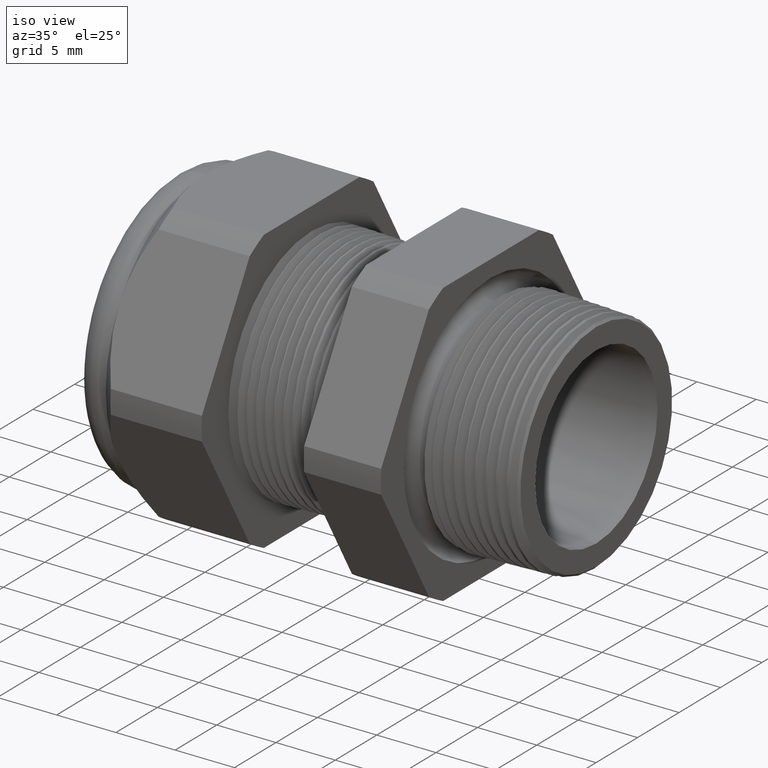
[diagram: clean part render]
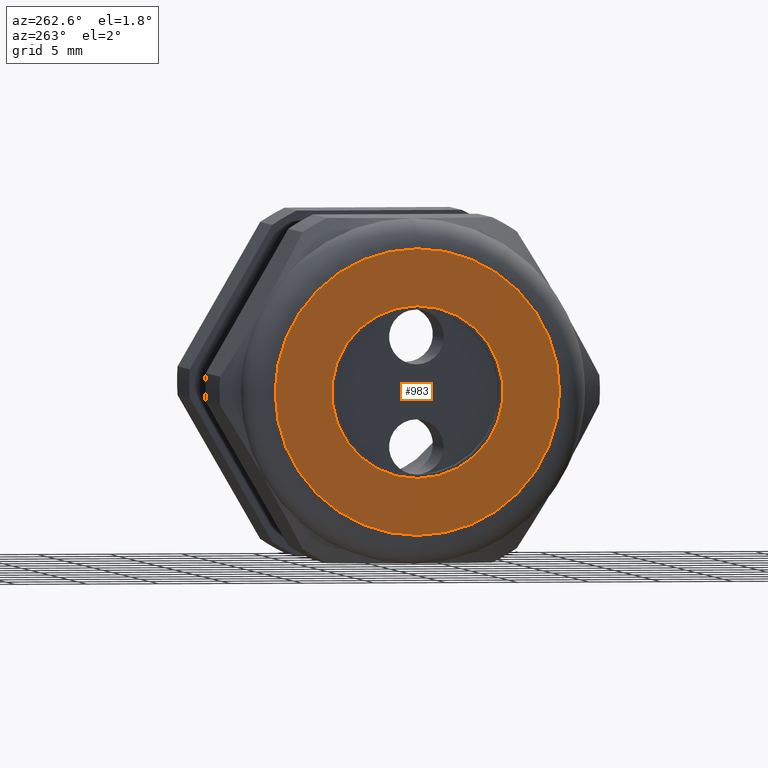
[diagram: tour spotlight — one face highlighted and labeled with its STEP entity id]
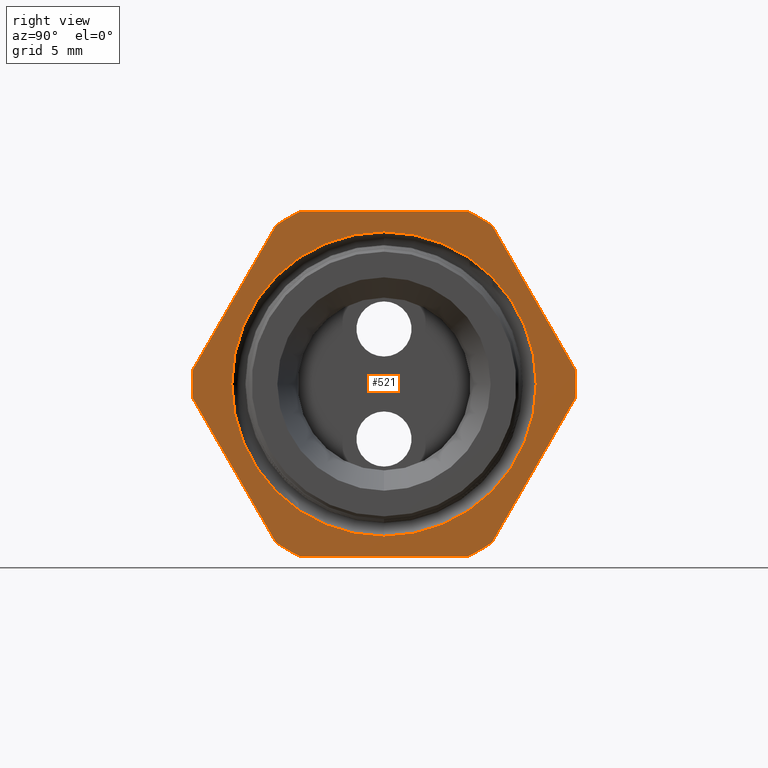
[diagram: tour spotlight — one face highlighted and labeled with its STEP entity id]
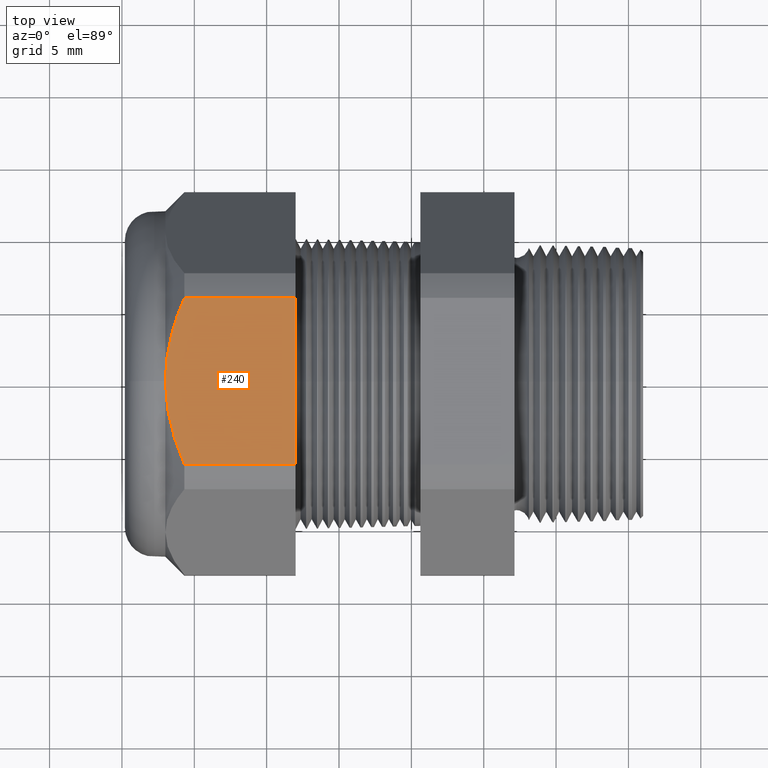
[diagram: tour spotlight — one face highlighted and labeled with its STEP entity id]
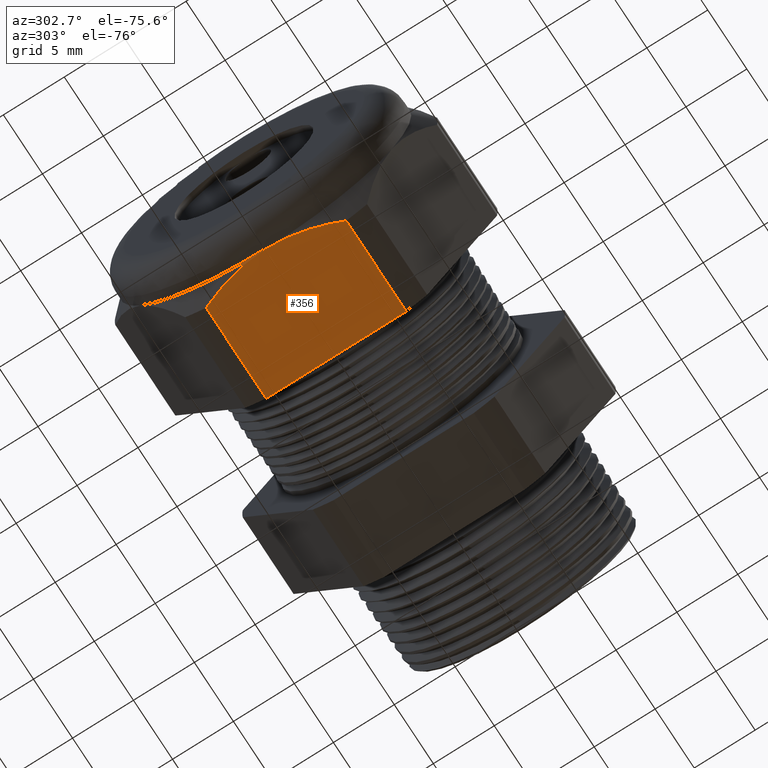
[diagram: tour spotlight — one face highlighted and labeled with its STEP entity id]
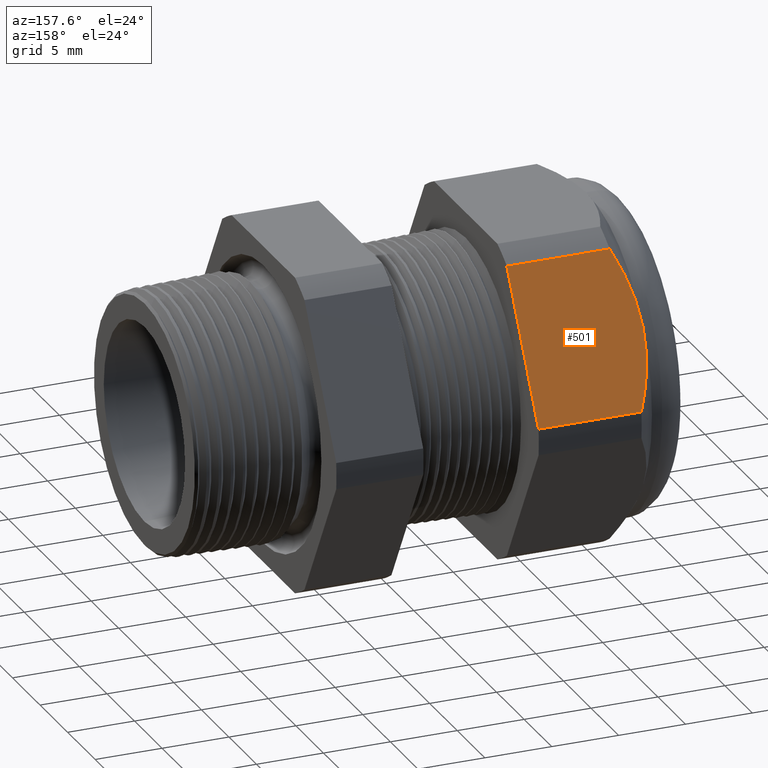
[diagram: tour spotlight — one face highlighted and labeled with its STEP entity id]
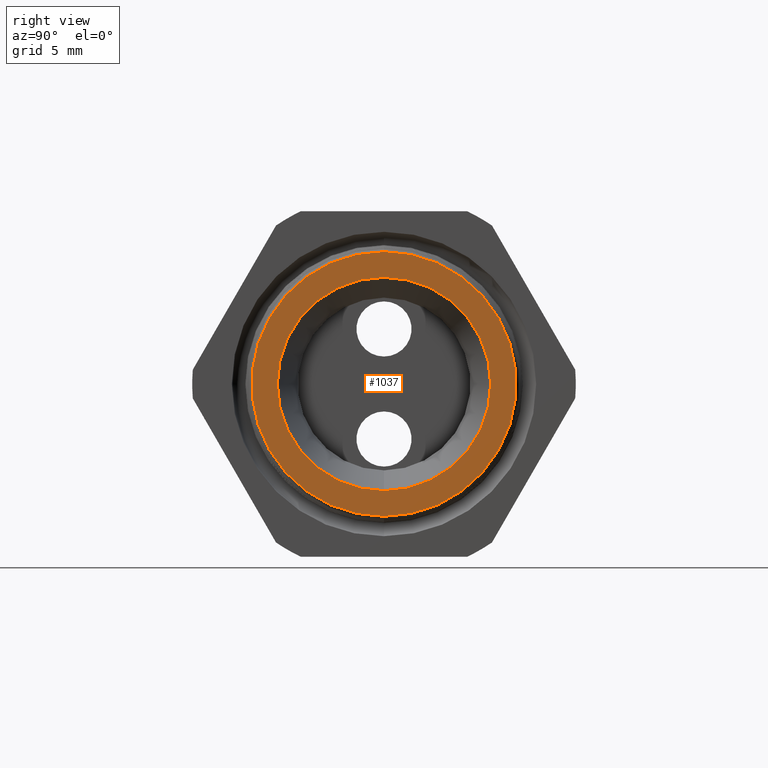
[diagram: tour spotlight — one face highlighted and labeled with its STEP entity id]
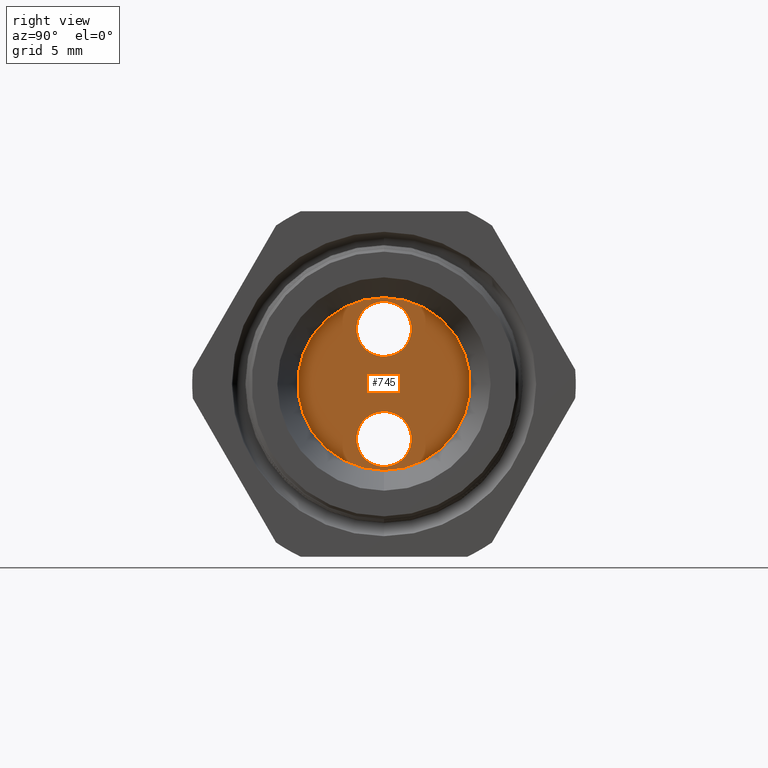
[diagram: tour spotlight — one face highlighted and labeled with its STEP entity id]
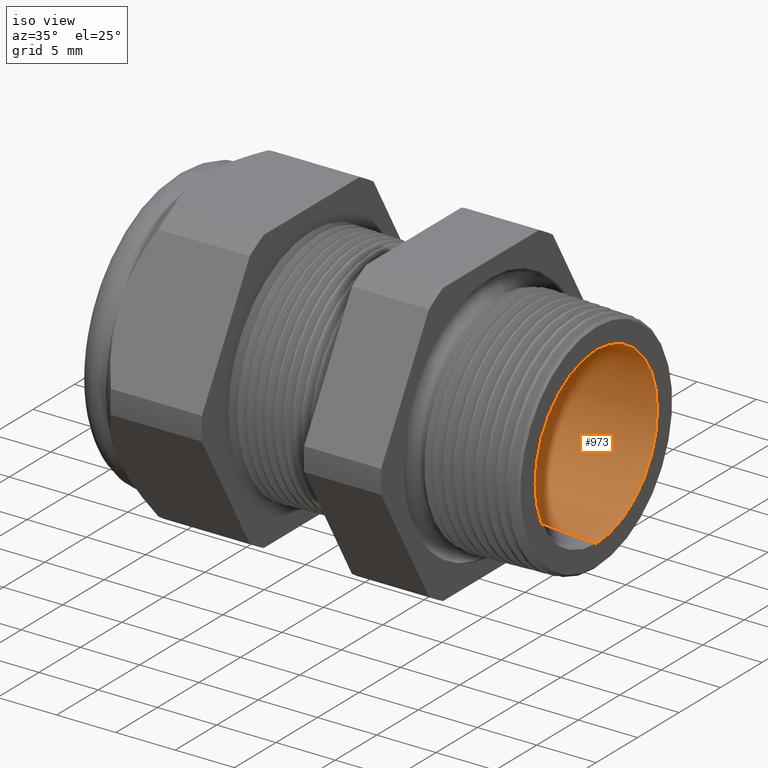
[diagram: tour spotlight — one face highlighted and labeled with its STEP entity id]
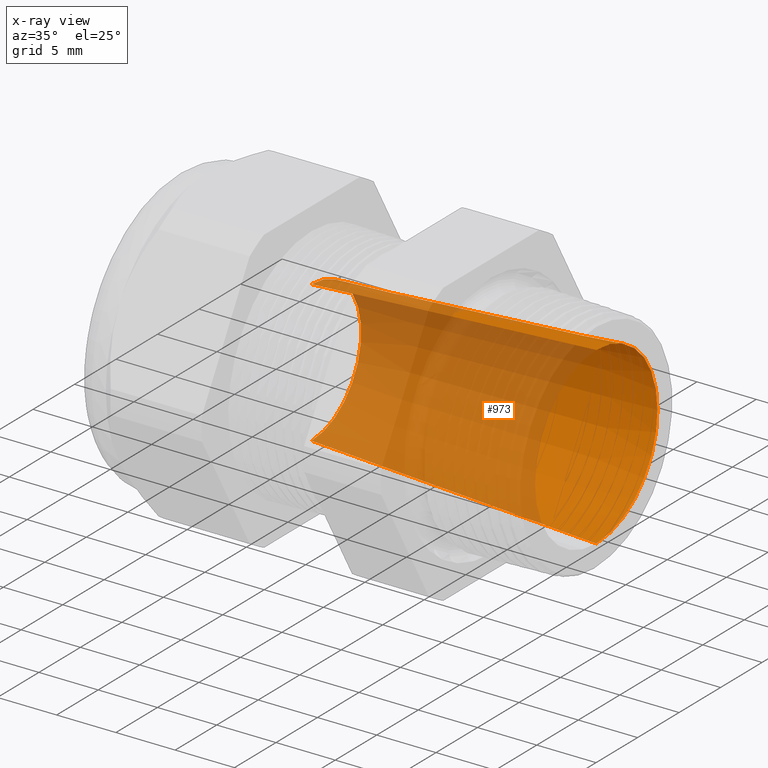
[diagram: x-ray of the same camera — body ghosted, this tour face saturated]
A machine part: a face-by-face anatomy tour. The part has 178 B-rep faces; the first image is the clean iso view, then the 8 largest visible faces are spotlighted one at a time (largest first), each with its STEP entity span.

Face 1 — auxiliary view, entity #983. In plain terms, the highlighted planar face has unit normal (-1, 0, 0).
Definition (entity closure, byte-faithful):
#409 = EDGE_CURVE ( 'NONE', #410, #573, #2291, .T. ) ;
#410 = VERTEX_POINT ( 'NONE', #2286 ) ;
#428 = EDGE_CURVE ( 'NONE', #429, #434, #2320, .T. ) ;
#429 = VERTEX_POINT ( 'NONE', #2315 ) ;
#434 = VERTEX_POINT ( 'NONE', #2366 ) ;
#573 = VERTEX_POINT ( 'NONE', #2643 ) ;
#983 = ADVANCED_FACE ( 'NONE', ( #3403, #3402 ), #3401, .T. ) ;
#984 = EDGE_LOOP ( 'NONE', ( #985, #986 ) ) ;
#985 = ORIENTED_EDGE ( 'NONE', *, *, #409, .T. ) ;
#986 = ORIENTED_EDGE ( 'NONE', *, *, #987, .T. ) ;
#987 = EDGE_CURVE ( 'NONE', #573, #410, #3396, .T. ) ;
#988 = EDGE_LOOP ( 'NONE', ( #989, #991 ) ) ;
#989 = ORIENTED_EDGE ( 'NONE', *, *, #990, .T. ) ;
#990 = EDGE_CURVE ( 'NONE', #434, #429, #3391, .T. ) ;
#991 = ORIENTED_EDGE ( 'NONE', *, *, #428, .T. ) ;
#2286 = CARTESIAN_POINT ( 'NONE',  ( -1.370000000000000100, 0.0000000000000000000, 0.3899999999999999600 ) ) ;
#2287 = DIRECTION ( 'NONE',  ( 0.0000000000000000000, 0.0000000000000000000, 1.000000000000000000 ) ) ;
#2288 = DIRECTION ( 'NONE',  ( -1.000000000000000000, 0.0000000000000000000, 0.0000000000000000000 ) ) ;
#2289 = CARTESIAN_POINT ( 'NONE',  ( -1.370000000000000100, 0.0000000000000000000, 0.0000000000000000000 ) ) ;
#2290 = AXIS2_PLACEMENT_3D ( 'NONE', #2289, #2288, #2287 ) ;
#2291 = CIRCLE ( 'NONE', #2290, 0.3899999999999999600 ) ;
#2315 = CARTESIAN_POINT ( 'NONE',  ( -1.370000000000000100, 2.877919977996279800E-017, 0.2349999999999999900 ) ) ;
#2316 = DIRECTION ( 'NONE',  ( 0.0000000000000000000, 0.0000000000000000000, -1.000000000000000000 ) ) ;
#2317 = DIRECTION ( 'NONE',  ( 1.000000000000000000, 0.0000000000000000000, 0.0000000000000000000 ) ) ;
#2318 = CARTESIAN_POINT ( 'NONE',  ( -1.370000000000000100, 0.0000000000000000000, 0.0000000000000000000 ) ) ;
#2319 = AXIS2_PLACEMENT_3D ( 'NONE', #2318, #2317, #2316 ) ;
#2320 = CIRCLE ( 'NONE', #2319, 0.2349999999999999900 ) ;
#2366 = CARTESIAN_POINT ( 'NONE',  ( -1.370000000000000100, 0.0000000000000000000, -0.2349999999999999900 ) ) ;
#2643 = CARTESIAN_POINT ( 'NONE',  ( -1.370000000000000100, 5.265981236333617600E-017, -0.3899999999999999600 ) ) ;
#3387 = DIRECTION ( 'NONE',  ( 0.0000000000000000000, 0.0000000000000000000, -1.000000000000000000 ) ) ;
#3388 = DIRECTION ( 'NONE',  ( 1.000000000000000000, 0.0000000000000000000, 0.0000000000000000000 ) ) ;
#3389 = CARTESIAN_POINT ( 'NONE',  ( -1.370000000000000100, 0.0000000000000000000, 0.0000000000000000000 ) ) ;
#3390 = AXIS2_PLACEMENT_3D ( 'NONE', #3389, #3388, #3387 ) ;
#3391 = CIRCLE ( 'NONE', #3390, 0.2349999999999999900 ) ;
#3392 = DIRECTION ( 'NONE',  ( 0.0000000000000000000, 0.0000000000000000000, 1.000000000000000000 ) ) ;
#3393 = DIRECTION ( 'NONE',  ( -1.000000000000000000, 0.0000000000000000000, 0.0000000000000000000 ) ) ;
#3394 = CARTESIAN_POINT ( 'NONE',  ( -1.370000000000000100, 0.0000000000000000000, 0.0000000000000000000 ) ) ;
#3395 = AXIS2_PLACEMENT_3D ( 'NONE', #3394, #3393, #3392 ) ;
#3396 = CIRCLE ( 'NONE', #3395, 0.3899999999999999600 ) ;
#3397 = DIRECTION ( 'NONE',  ( 0.0000000000000000000, 0.0000000000000000000, 1.000000000000000000 ) ) ;
#3398 = DIRECTION ( 'NONE',  ( -1.000000000000000000, 0.0000000000000000000, 0.0000000000000000000 ) ) ;
#3399 = CARTESIAN_POINT ( 'NONE',  ( -1.370000000000000100, 0.4699999999999999200, 0.0000000000000000000 ) ) ;
#3400 = AXIS2_PLACEMENT_3D ( 'NONE', #3399, #3398, #3397 ) ;
#3401 = PLANE ( 'NONE',  #3400 ) ;
#3402 = FACE_BOUND ( 'NONE', #988, .T. ) ;
#3403 = FACE_OUTER_BOUND ( 'NONE', #984, .T. ) ;

Face 2 — right view, entity #521. In plain terms, the highlighted planar face has unit normal (1, 0, 0).
Definition (entity closure, byte-faithful):
#6 = EDGE_CURVE ( 'NONE', #7, #4582, #1525, .T. ) ;
#7 = VERTEX_POINT ( 'NONE', #1520 ) ;
#8 = ORIENTED_EDGE ( 'NONE', *, *, #6, .T. ) ;
#10 = EDGE_CURVE ( 'NONE', #4850, #7, #1519, .T. ) ;
#14 = EDGE_CURVE ( 'NONE', #4852, #4850, #1510, .T. ) ;
#37 = EDGE_CURVE ( 'NONE', #4722, #4852, #1586, .T. ) ;
#152 = VERTEX_POINT ( 'NONE', #1800 ) ;
#516 = EDGE_CURVE ( 'NONE', #740, #152, #2498, .T. ) ;
#517 = ORIENTED_EDGE ( 'NONE', *, *, #516, .F. ) ;
#518 = EDGE_LOOP ( 'NONE', ( #517, #4675 ) ) ;
#521 = ADVANCED_FACE ( 'NONE', ( #2493, #2492 ), #2491, .T. ) ;
#538 = VERTEX_POINT ( 'NONE', #2584 ) ;
#540 = EDGE_CURVE ( 'NONE', #542, #538, #2583, .T. ) ;
#542 = VERTEX_POINT ( 'NONE', #2578 ) ;
#543 = ORIENTED_EDGE ( 'NONE', *, *, #540, .T. ) ;
#740 = VERTEX_POINT ( 'NONE', #2918 ) ;
#743 = EDGE_CURVE ( 'NONE', #152, #740, #2917, .T. ) ;
#1506 = DIRECTION ( 'NONE',  ( 0.0000000000000000000, 0.0000000000000000000, -1.000000000000000000 ) ) ;
#1507 = DIRECTION ( 'NONE',  ( 1.000000000000000000, 0.0000000000000000000, 0.0000000000000000000 ) ) ;
#1508 = CARTESIAN_POINT ( 'NONE',  ( -0.3100000000000000000, 0.0000000000000000000, 0.0000000000000000000 ) ) ;
#1509 = AXIS2_PLACEMENT_3D ( 'NONE', #1508, #1507, #1506 ) ;
#1510 = CIRCLE ( 'NONE', #1509, 0.5217000000000000500 ) ;
#1516 = DIRECTION ( 'NONE',  ( 0.0000000000000000000, 1.000000000000000000, 0.0000000000000000000 ) ) ;
#1517 = VECTOR ( 'NONE', #1516, 39.37007874015748100 ) ;
#1518 = CARTESIAN_POINT ( 'NONE',  ( -0.3100000000000000000, 0.9399999999999999500, -0.4700000000000000300 ) ) ;
#1519 = LINE ( 'NONE', #1518, #1517 ) ;
#1520 = CARTESIAN_POINT ( 'NONE',  ( -0.3100000000000000000, 0.2264307620443831200, -0.4700000000000000300 ) ) ;
#1521 = DIRECTION ( 'NONE',  ( 0.0000000000000000000, 0.0000000000000000000, -1.000000000000000000 ) ) ;
#1522 = DIRECTION ( 'NONE',  ( 1.000000000000000000, 0.0000000000000000000, 0.0000000000000000000 ) ) ;
#1523 = CARTESIAN_POINT ( 'NONE',  ( -0.3100000000000000000, 0.0000000000000000000, 0.0000000000000000000 ) ) ;
#1524 = AXIS2_PLACEMENT_3D ( 'NONE', #1523, #1522, #1521 ) ;
#1525 = CIRCLE ( 'NONE', #1524, 0.5217000000000000500 ) ;
#1583 = DIRECTION ( 'NONE',  ( 0.0000000000000000000, 0.5000000000000001100, -0.8660254037844384900 ) ) ;
#1584 = VECTOR ( 'NONE', #1583, 39.37007874015748900 ) ;
#1585 = CARTESIAN_POINT ( 'NONE',  ( -0.3100000000000000000, -0.1720319397786861700, -0.6420319397786864400 ) ) ;
#1586 = LINE ( 'NONE', #1585, #1584 ) ;
#1800 = CARTESIAN_POINT ( 'NONE',  ( -0.3100000000000000000, 5.070638467826607500E-017, 0.4140490524579807900 ) ) ;
#2491 = PLANE ( 'NONE',  #2555 ) ;
#2492 = FACE_OUTER_BOUND ( 'NONE', #4566, .T. ) ;
#2493 = FACE_BOUND ( 'NONE', #518, .T. ) ;
#2494 = DIRECTION ( 'NONE',  ( 0.0000000000000000000, 0.0000000000000000000, -1.000000000000000000 ) ) ;
#2495 = DIRECTION ( 'NONE',  ( 1.000000000000000000, 0.0000000000000000000, 0.0000000000000000000 ) ) ;
#2496 = CARTESIAN_POINT ( 'NONE',  ( -0.3100000000000000000, 0.0000000000000000000, 0.0000000000000000000 ) ) ;
#2497 = AXIS2_PLACEMENT_3D ( 'NONE', #2496, #2495, #2494 ) ;
#2498 = CIRCLE ( 'NONE', #2497, 0.4140490524579808500 ) ;
#2552 = DIRECTION ( 'NONE',  ( 0.0000000000000000000, 0.0000000000000000000, -1.000000000000000000 ) ) ;
#2553 = DIRECTION ( 'NONE',  ( 1.000000000000000000, 0.0000000000000000000, 0.0000000000000000000 ) ) ;
#2554 = CARTESIAN_POINT ( 'NONE',  ( -0.3100000000000000000, 0.9399999999999999500, 0.0000000000000000000 ) ) ;
#2555 = AXIS2_PLACEMENT_3D ( 'NONE', #2554, #2553, #2552 ) ;
#2578 = CARTESIAN_POINT ( 'NONE',  ( -0.3100000000000000000, 0.2938165587564947600, 0.4310947921287048800 ) ) ;
#2579 = DIRECTION ( 'NONE',  ( 0.0000000000000000000, 0.0000000000000000000, -1.000000000000000000 ) ) ;
#2580 = DIRECTION ( 'NONE',  ( 1.000000000000000000, 0.0000000000000000000, 0.0000000000000000000 ) ) ;
#2581 = CARTESIAN_POINT ( 'NONE',  ( -0.3100000000000000000, 0.0000000000000000000, 0.0000000000000000000 ) ) ;
#2582 = AXIS2_PLACEMENT_3D ( 'NONE', #2581, #2580, #2579 ) ;
#2583 = CIRCLE ( 'NONE', #2582, 0.5217000000000000500 ) ;
#2584 = CARTESIAN_POINT ( 'NONE',  ( -0.3100000000000000000, 0.2264307620443832800, 0.4699999999999999200 ) ) ;
#2913 = DIRECTION ( 'NONE',  ( 0.0000000000000000000, 0.0000000000000000000, -1.000000000000000000 ) ) ;
#2914 = DIRECTION ( 'NONE',  ( 1.000000000000000000, 0.0000000000000000000, 0.0000000000000000000 ) ) ;
#2915 = CARTESIAN_POINT ( 'NONE',  ( -0.3100000000000000000, 0.0000000000000000000, 0.0000000000000000000 ) ) ;
#2916 = AXIS2_PLACEMENT_3D ( 'NONE', #2915, #2914, #2913 ) ;
#2917 = CIRCLE ( 'NONE', #2916, 0.4140490524579808500 ) ;
#2918 = CARTESIAN_POINT ( 'NONE',  ( -0.3100000000000000000, 0.0000000000000000000, -0.4140490524579807900 ) ) ;
#4168 = CARTESIAN_POINT ( 'NONE',  ( -0.3100000000000000000, 0.2938165587564948700, -0.4310947921287048800 ) ) ;
#4174 = CARTESIAN_POINT ( 'NONE',  ( -0.3100000000000000000, 0.5202473208008777700, -0.03890520787129494300 ) ) ;
#4187 = CARTESIAN_POINT ( 'NONE',  ( -0.3100000000000000000, 0.6420319397786862200, -0.1720319397786861700 ) ) ;
#4188 = LINE ( 'NONE', #4187, #4249 ) ;
#4219 = AXIS2_PLACEMENT_3D ( 'NONE', #4283, #4282, #4281 ) ;
#4220 = CIRCLE ( 'NONE', #4219, 0.5217000000000000500 ) ;
#4247 = CARTESIAN_POINT ( 'NONE',  ( -0.3100000000000000000, 0.5202473208008776600, 0.03890520787129531800 ) ) ;
#4248 = DIRECTION ( 'NONE',  ( 0.0000000000000000000, -0.5000000000000001100, 0.8660254037844384900 ) ) ;
#4249 = VECTOR ( 'NONE', #4248, 39.37007874015748900 ) ;
#4253 = CARTESIAN_POINT ( 'NONE',  ( -0.3100000000000000000, -0.5202473208008777700, -0.03890520787129495000 ) ) ;
#4277 = DIRECTION ( 'NONE',  ( 0.0000000000000000000, 0.4999999999999998300, 0.8660254037844388200 ) ) ;
#4278 = VECTOR ( 'NONE', #4277, 39.37007874015748100 ) ;
#4279 = CARTESIAN_POINT ( 'NONE',  ( -0.3100000000000000000, 0.6420319397786861100, 0.1720319397786860800 ) ) ;
#4280 = LINE ( 'NONE', #4279, #4278 ) ;
#4281 = DIRECTION ( 'NONE',  ( 0.0000000000000000000, 0.0000000000000000000, -1.000000000000000000 ) ) ;
#4282 = DIRECTION ( 'NONE',  ( 1.000000000000000000, 0.0000000000000000000, 0.0000000000000000000 ) ) ;
#4283 = CARTESIAN_POINT ( 'NONE',  ( -0.3100000000000000000, 0.0000000000000000000, 0.0000000000000000000 ) ) ;
#4351 = DIRECTION ( 'NONE',  ( 0.0000000000000000000, 0.0000000000000000000, -1.000000000000000000 ) ) ;
#4352 = DIRECTION ( 'NONE',  ( 1.000000000000000000, 0.0000000000000000000, 0.0000000000000000000 ) ) ;
#4353 = CARTESIAN_POINT ( 'NONE',  ( -0.3100000000000000000, 0.0000000000000000000, 0.0000000000000000000 ) ) ;
#4354 = AXIS2_PLACEMENT_3D ( 'NONE', #4353, #4352, #4351 ) ;
#4355 = CIRCLE ( 'NONE', #4354, 0.5217000000000000500 ) ;
#4356 = CARTESIAN_POINT ( 'NONE',  ( -0.3100000000000000000, -0.5202473208008777700, 0.03890520787129464500 ) ) ;
#4410 = DIRECTION ( 'NONE',  ( 0.0000000000000000000, -0.4999999999999998300, -0.8660254037844388200 ) ) ;
#4411 = VECTOR ( 'NONE', #4410, 39.37007874015748100 ) ;
#4412 = CARTESIAN_POINT ( 'NONE',  ( -0.3100000000000000000, -0.1720319397786864200, 0.6420319397786858900 ) ) ;
#4413 = LINE ( 'NONE', #4412, #4411 ) ;
#4426 = CARTESIAN_POINT ( 'NONE',  ( -0.3100000000000000000, -0.2938165587564945900, 0.4310947921287050500 ) ) ;
#4463 = CARTESIAN_POINT ( 'NONE',  ( -0.3100000000000000000, -0.2264307620443835300, 0.4699999999999997000 ) ) ;
#4532 = DIRECTION ( 'NONE',  ( 0.0000000000000000000, 0.0000000000000000000, -1.000000000000000000 ) ) ;
#4533 = DIRECTION ( 'NONE',  ( 1.000000000000000000, 0.0000000000000000000, 0.0000000000000000000 ) ) ;
#4534 = CARTESIAN_POINT ( 'NONE',  ( -0.3100000000000000000, 0.0000000000000000000, 0.0000000000000000000 ) ) ;
#4535 = AXIS2_PLACEMENT_3D ( 'NONE', #4534, #4533, #4532 ) ;
#4536 = CIRCLE ( 'NONE', #4535, 0.5217000000000000500 ) ;
#4561 = VERTEX_POINT ( 'NONE', #4174 ) ;
#4564 = CARTESIAN_POINT ( 'NONE',  ( -0.3100000000000000000, -0.2938165587564942600, -0.4310947921287053300 ) ) ;
#4565 = CARTESIAN_POINT ( 'NONE',  ( -0.3100000000000000000, -0.2264307620443830900, -0.4700000000000000300 ) ) ;
#4566 = EDGE_LOOP ( 'NONE', ( #4709, #4706, #4685, #543, #4847, #4799, #4795, #4764, #4723, #4851, #4849, #8 ) ) ;
#4573 = DIRECTION ( 'NONE',  ( 0.0000000000000000000, -1.000000000000000000, 0.0000000000000000000 ) ) ;
#4574 = VECTOR ( 'NONE', #4573, 39.37007874015748100 ) ;
#4575 = CARTESIAN_POINT ( 'NONE',  ( -0.3100000000000000000, 0.9399999999999999500, 0.4699999999999999200 ) ) ;
#4576 = LINE ( 'NONE', #4575, #4574 ) ;
#4582 = VERTEX_POINT ( 'NONE', #4168 ) ;
#4675 = ORIENTED_EDGE ( 'NONE', *, *, #743, .F. ) ;
#4685 = ORIENTED_EDGE ( 'NONE', *, *, #4690, .T. ) ;
#4690 = EDGE_CURVE ( 'NONE', #4691, #542, #4188, .T. ) ;
#4691 = VERTEX_POINT ( 'NONE', #4247 ) ;
#4706 = ORIENTED_EDGE ( 'NONE', *, *, #4707, .T. ) ;
#4707 = EDGE_CURVE ( 'NONE', #4561, #4691, #4220, .T. ) ;
#4708 = EDGE_CURVE ( 'NONE', #4582, #4561, #4280, .T. ) ;
#4709 = ORIENTED_EDGE ( 'NONE', *, *, #4708, .T. ) ;
#4722 = VERTEX_POINT ( 'NONE', #4253 ) ;
#4723 = ORIENTED_EDGE ( 'NONE', *, *, #37, .T. ) ;
#4763 = VERTEX_POINT ( 'NONE', #4356 ) ;
#4764 = ORIENTED_EDGE ( 'NONE', *, *, #4765, .T. ) ;
#4765 = EDGE_CURVE ( 'NONE', #4763, #4722, #4355, .T. ) ;
#4770 = EDGE_CURVE ( 'NONE', #4794, #4763, #4413, .T. ) ;
#4794 = VERTEX_POINT ( 'NONE', #4426 ) ;
#4795 = ORIENTED_EDGE ( 'NONE', *, *, #4770, .T. ) ;
#4799 = ORIENTED_EDGE ( 'NONE', *, *, #4838, .T. ) ;
#4812 = VERTEX_POINT ( 'NONE', #4463 ) ;
#4838 = EDGE_CURVE ( 'NONE', #4812, #4794, #4536, .T. ) ;
#4845 = EDGE_CURVE ( 'NONE', #538, #4812, #4576, .T. ) ;
#4847 = ORIENTED_EDGE ( 'NONE', *, *, #4845, .T. ) ;
#4849 = ORIENTED_EDGE ( 'NONE', *, *, #10, .T. ) ;
#4850 = VERTEX_POINT ( 'NONE', #4565 ) ;
#4851 = ORIENTED_EDGE ( 'NONE', *, *, #14, .T. ) ;
#4852 = VERTEX_POINT ( 'NONE', #4564 ) ;

Face 3 — top view, entity #240. In plain terms, the highlighted planar face has unit normal (0, 0, 1).
Definition (entity closure, byte-faithful):
#180 = VERTEX_POINT ( 'NONE', #1815 ) ;
#188 = VERTEX_POINT ( 'NONE', #1868 ) ;
#189 = EDGE_CURVE ( 'NONE', #188, #180, #1867, .T. ) ;
#231 = VERTEX_POINT ( 'NONE', #1913 ) ;
#232 = VERTEX_POINT ( 'NONE', #1910 ) ;
#233 = EDGE_CURVE ( 'NONE', #232, #454, #1960, .T. ) ;
#234 = ORIENTED_EDGE ( 'NONE', *, *, #233, .T. ) ;
#235 = EDGE_CURVE ( 'NONE', #231, #232, #1959, .T. ) ;
#236 = ORIENTED_EDGE ( 'NONE', *, *, #235, .T. ) ;
#238 = EDGE_LOOP ( 'NONE', ( #236, #234, #495, #487, #488 ) ) ;
#240 = ADVANCED_FACE ( 'NONE', ( #1937 ), #1936, .T. ) ;
#454 = VERTEX_POINT ( 'NONE', #2392 ) ;
#487 = ORIENTED_EDGE ( 'NONE', *, *, #189, .F. ) ;
#488 = ORIENTED_EDGE ( 'NONE', *, *, #489, .F. ) ;
#489 = EDGE_CURVE ( 'NONE', #231, #188, #2456, .T. ) ;
#495 = ORIENTED_EDGE ( 'NONE', *, *, #496, .T. ) ;
#496 = EDGE_CURVE ( 'NONE', #454, #180, #2487, .T. ) ;
#1815 = CARTESIAN_POINT ( 'NONE',  ( -1.208063779527559100, -0.2264307620443834500, 0.4699999999999999200 ) ) ;
#1864 = DIRECTION ( 'NONE',  ( -1.000000000000000000, 0.0000000000000000000, 0.0000000000000000000 ) ) ;
#1865 = VECTOR ( 'NONE', #1864, 39.37007874015748100 ) ;
#1866 = CARTESIAN_POINT ( 'NONE',  ( 0.03999999999999984800, -0.2264307620443835300, 0.4699999999999997000 ) ) ;
#1867 = LINE ( 'NONE', #1866, #1865 ) ;
#1868 = CARTESIAN_POINT ( 'NONE',  ( -0.9054330708661418900, -0.2264307620443835300, 0.4699999999999997000 ) ) ;
#1910 = CARTESIAN_POINT ( 'NONE',  ( -1.208063779527559300, 0.2264307620443832800, 0.4699999999999999200 ) ) ;
#1913 = CARTESIAN_POINT ( 'NONE',  ( -0.9054330708661418900, 0.2264307620443832800, 0.4699999999999999200 ) ) ;
#1931 = DIRECTION ( 'NONE',  ( 1.000000000000000000, 0.0000000000000000000, 0.0000000000000000000 ) ) ;
#1932 = DIRECTION ( 'NONE',  ( 0.0000000000000000000, 0.0000000000000000000, 1.000000000000000000 ) ) ;
#1933 = CARTESIAN_POINT ( 'NONE',  ( 0.03999999999999984800, -0.2264307620443832800, 0.4699999999999999200 ) ) ;
#1934 = AXIS2_PLACEMENT_3D ( 'NONE', #1933, #1932, #1931 ) ;
#1936 = PLANE ( 'NONE',  #1934 ) ;
#1937 = FACE_OUTER_BOUND ( 'NONE', #238, .T. ) ;
#1946 = CARTESIAN_POINT ( 'NONE',  ( -1.259763779527559400, 0.0000000000000000000, 0.4699999999999999200 ) ) ;
#1947 = CARTESIAN_POINT ( 'NONE',  ( -1.259763779527559600, 0.01964242875915825700, 0.4700000000000000300 ) ) ;
#1948 = CARTESIAN_POINT ( 'NONE',  ( -1.258517019735540900, 0.03924163778662364400, 0.4699999999999999700 ) ) ;
#1949 = CARTESIAN_POINT ( 'NONE',  ( -1.253749478914868700, 0.07782038235249987000, 0.4699999999999997500 ) ) ;
#1950 = CARTESIAN_POINT ( 'NONE',  ( -1.250231001418867600, 0.09688970369981497700, 0.4699999999999998600 ) ) ;
#1951 = CARTESIAN_POINT ( 'NONE',  ( -1.241202062721104900, 0.1346420459264781000, 0.4699999999999999700 ) ) ;
#1952 = CARTESIAN_POINT ( 'NONE',  ( -1.235692781244512700, 0.1533252955870069200, 0.4699999999999997500 ) ) ;
#1953 = CARTESIAN_POINT ( 'NONE',  ( -1.222974602953726500, 0.1903621927138393300, 0.4700000000000000300 ) ) ;
#1954 = CARTESIAN_POINT ( 'NONE',  ( -1.215800509309333100, 0.2086052162099337700, 0.4699999999999998600 ) ) ;
#1955 = CARTESIAN_POINT ( 'NONE',  ( -1.208063779527559300, 0.2264307620443832800, 0.4699999999999999200 ) ) ;
#1956 = DIRECTION ( 'NONE',  ( -1.000000000000000000, 0.0000000000000000000, 0.0000000000000000000 ) ) ;
#1957 = VECTOR ( 'NONE', #1956, 39.37007874015748100 ) ;
#1958 = CARTESIAN_POINT ( 'NONE',  ( 0.03999999999999984800, 0.2264307620443832800, 0.4699999999999999200 ) ) ;
#1959 = LINE ( 'NONE', #1958, #1957 ) ;
#1960 = B_SPLINE_CURVE_WITH_KNOTS ( 'NONE', 3,
 ( #1955, #1954, #1953, #1952, #1951, #1950, #1949, #1948, #1947, #1946 ),
 .UNSPECIFIED., .F., .F.,
 ( 4, 2, 2, 2, 4 ),
 ( 0.009140358755258091600, 0.01061001397932213900, 0.01207966920338618900, 0.01354932442745024200, 0.01501897965151429200 ),
 .UNSPECIFIED. ) ;
#2392 = CARTESIAN_POINT ( 'NONE',  ( -1.259763779527559400, 0.0000000000000000000, 0.4699999999999999200 ) ) ;
#2448 = DIRECTION ( 'NONE',  ( 0.0000000000000000000, -1.000000000000000000, 0.0000000000000000000 ) ) ;
#2449 = VECTOR ( 'NONE', #2448, 39.37007874015748100 ) ;
#2450 = CARTESIAN_POINT ( 'NONE',  ( -0.9054330708661418900, 0.3950000000000000200, 0.4699999999999999200 ) ) ;
#2456 = LINE ( 'NONE', #2450, #2449 ) ;
#2479 = CARTESIAN_POINT ( 'NONE',  ( -1.208063779527559100, -0.2264307620443834500, 0.4699999999999999200 ) ) ;
#2480 = CARTESIAN_POINT ( 'NONE',  ( -1.215800659726855800, -0.2086048696456210000, 0.4699999999999999700 ) ) ;
#2481 = CARTESIAN_POINT ( 'NONE',  ( -1.222949366997029100, -0.1904348960138968200, 0.4700000000000002000 ) ) ;
#2482 = CARTESIAN_POINT ( 'NONE',  ( -1.235712352585576200, -0.1532690879941744400, 0.4699999999999999200 ) ) ;
#2483 = CARTESIAN_POINT ( 'NONE',  ( -1.241231388637373100, -0.1345390626635395200, 0.4699999999999998600 ) ) ;
#2484 = CARTESIAN_POINT ( 'NONE',  ( -1.254778598172672700, -0.07783554612607082600, 0.4699999999999999200 ) ) ;
#2485 = CARTESIAN_POINT ( 'NONE',  ( -1.259763779527559400, -0.03934296915062175000, 0.4700000000000000300 ) ) ;
#2486 = CARTESIAN_POINT ( 'NONE',  ( -1.259763779527559400, 0.0000000000000000000, 0.4699999999999999200 ) ) ;
#2487 = B_SPLINE_CURVE_WITH_KNOTS ( 'NONE', 3,
 ( #2486, #2485, #2484, #2483, #2482, #2481, #2480, #2479 ),
 .UNSPECIFIED., .F., .F.,
 ( 4, 2, 2, 4 ),
 ( 0.01501897965151429200, 0.01796263803772295300, 0.01943446723082728500, 0.02090629642393161700 ),
 .UNSPECIFIED. ) ;

Face 4 — auxiliary view, entity #356. In plain terms, the highlighted planar face has unit normal (0, 0, -1).
Definition (entity closure, byte-faithful):
#305 = ORIENTED_EDGE ( 'NONE', *, *, #358, .T. ) ;
#314 = VERTEX_POINT ( 'NONE', #2118 ) ;
#315 = VERTEX_POINT ( 'NONE', #2116 ) ;
#343 = EDGE_LOOP ( 'NONE', ( #346, #305, #649, #643, #369 ) ) ;
#344 = EDGE_CURVE ( 'NONE', #314, #315, #2137, .T. ) ;
#346 = ORIENTED_EDGE ( 'NONE', *, *, #344, .T. ) ;
#356 = ADVANCED_FACE ( 'NONE', ( #2167 ), #2166, .T. ) ;
#358 = EDGE_CURVE ( 'NONE', #315, #443, #2156, .T. ) ;
#369 = ORIENTED_EDGE ( 'NONE', *, *, #374, .F. ) ;
#374 = EDGE_CURVE ( 'NONE', #314, #622, #2242, .T. ) ;
#443 = VERTEX_POINT ( 'NONE', #2356 ) ;
#620 = EDGE_CURVE ( 'NONE', #622, #623, #2698, .T. ) ;
#622 = VERTEX_POINT ( 'NONE', #2688 ) ;
#623 = VERTEX_POINT ( 'NONE', #2687 ) ;
#643 = ORIENTED_EDGE ( 'NONE', *, *, #620, .F. ) ;
#644 = EDGE_CURVE ( 'NONE', #443, #623, #2765, .T. ) ;
#649 = ORIENTED_EDGE ( 'NONE', *, *, #644, .T. ) ;
#2116 = CARTESIAN_POINT ( 'NONE',  ( -1.208063779527559100, -0.2264307620443830900, -0.4700000000000000300 ) ) ;
#2118 = CARTESIAN_POINT ( 'NONE',  ( -0.9054330708661418900, -0.2264307620443830900, -0.4700000000000000300 ) ) ;
#2129 = DIRECTION ( 'NONE',  ( -1.000000000000000000, 0.0000000000000000000, 0.0000000000000000000 ) ) ;
#2130 = VECTOR ( 'NONE', #2129, 39.37007874015748100 ) ;
#2131 = CARTESIAN_POINT ( 'NONE',  ( 0.03999999999999984800, -0.2264307620443830900, -0.4700000000000000300 ) ) ;
#2137 = LINE ( 'NONE', #2131, #2130 ) ;
#2156 = B_SPLINE_CURVE_WITH_KNOTS ( 'NONE', 3,
 ( #2216, #2215, #2214, #2213, #2212, #2211, #2210, #2209 ),
 .UNSPECIFIED., .F., .F.,
 ( 4, 2, 2, 4 ),
 ( 0.008098547117357338500, 0.009570982036025179800, 0.01104341695469301900, 0.01398828679202869900 ),
 .UNSPECIFIED. ) ;
#2162 = DIRECTION ( 'NONE',  ( -1.000000000000000000, 0.0000000000000000000, 0.0000000000000000000 ) ) ;
#2163 = DIRECTION ( 'NONE',  ( 0.0000000000000000000, 0.0000000000000000000, -1.000000000000000000 ) ) ;
#2164 = CARTESIAN_POINT ( 'NONE',  ( 0.03999999999999984800, 0.2264307620443830900, -0.4700000000000000300 ) ) ;
#2165 = AXIS2_PLACEMENT_3D ( 'NONE', #2164, #2163, #2162 ) ;
#2166 = PLANE ( 'NONE',  #2165 ) ;
#2167 = FACE_OUTER_BOUND ( 'NONE', #343, .T. ) ;
#2209 = CARTESIAN_POINT ( 'NONE',  ( -1.259763779527559400, 0.0000000000000000000, -0.4700000000000000300 ) ) ;
#2210 = CARTESIAN_POINT ( 'NONE',  ( -1.259763779527559400, -0.03934296915062170100, -0.4699999999999999700 ) ) ;
#2211 = CARTESIAN_POINT ( 'NONE',  ( -1.254778598172673300, -0.07783554612607075700, -0.4700000000000002500 ) ) ;
#2212 = CARTESIAN_POINT ( 'NONE',  ( -1.241231388637373400, -0.1345390626635393800, -0.4700000000000000300 ) ) ;
#2213 = CARTESIAN_POINT ( 'NONE',  ( -1.235712352585576200, -0.1532690879941743200, -0.4700000000000002500 ) ) ;
#2214 = CARTESIAN_POINT ( 'NONE',  ( -1.222949366997028200, -0.1904348960138965700, -0.4700000000000000300 ) ) ;
#2215 = CARTESIAN_POINT ( 'NONE',  ( -1.215800659726855400, -0.2086048696456206900, -0.4699999999999999700 ) ) ;
#2216 = CARTESIAN_POINT ( 'NONE',  ( -1.208063779527559100, -0.2264307620443830900, -0.4700000000000000300 ) ) ;
#2233 = DIRECTION ( 'NONE',  ( 0.0000000000000000000, 1.000000000000000000, 0.0000000000000000000 ) ) ;
#2234 = VECTOR ( 'NONE', #2233, 39.37007874015748100 ) ;
#2241 = CARTESIAN_POINT ( 'NONE',  ( -0.9054330708661418900, 0.3950000000000000200, -0.4700000000000000300 ) ) ;
#2242 = LINE ( 'NONE', #2241, #2234 ) ;
#2356 = CARTESIAN_POINT ( 'NONE',  ( -1.259763779527559400, 0.0000000000000000000, -0.4700000000000000300 ) ) ;
#2687 = CARTESIAN_POINT ( 'NONE',  ( -1.208063779527559100, 0.2264307620443831200, -0.4700000000000000300 ) ) ;
#2688 = CARTESIAN_POINT ( 'NONE',  ( -0.9054330708661418900, 0.2264307620443831200, -0.4700000000000000300 ) ) ;
#2694 = DIRECTION ( 'NONE',  ( -1.000000000000000000, 0.0000000000000000000, 0.0000000000000000000 ) ) ;
#2695 = VECTOR ( 'NONE', #2694, 39.37007874015748100 ) ;
#2696 = CARTESIAN_POINT ( 'NONE',  ( 0.03999999999999984800, 0.2264307620443831200, -0.4700000000000000300 ) ) ;
#2698 = LINE ( 'NONE', #2696, #2695 ) ;
#2751 = CARTESIAN_POINT ( 'NONE',  ( -1.208063779527559100, 0.2264307620443831200, -0.4700000000000000300 ) ) ;
#2752 = CARTESIAN_POINT ( 'NONE',  ( -1.215800509309333100, 0.2086052162099336400, -0.4700000000000000300 ) ) ;
#2753 = CARTESIAN_POINT ( 'NONE',  ( -1.222974602953726100, 0.1903621927138391400, -0.4700000000000000800 ) ) ;
#2754 = CARTESIAN_POINT ( 'NONE',  ( -1.235692781244512700, 0.1533252955870068900, -0.4700000000000000300 ) ) ;
#2755 = CARTESIAN_POINT ( 'NONE',  ( -1.241202062721104900, 0.1346420459264779100, -0.4700000000000000800 ) ) ;
#2756 = CARTESIAN_POINT ( 'NONE',  ( -1.250231001418866700, 0.09688970369981489400, -0.4700000000000000300 ) ) ;
#2757 = CARTESIAN_POINT ( 'NONE',  ( -1.253749478914868700, 0.07782038235249993900, -0.4699999999999999700 ) ) ;
#2758 = CARTESIAN_POINT ( 'NONE',  ( -1.258517019735541300, 0.03924163778662374800, -0.4700000000000000300 ) ) ;
#2759 = CARTESIAN_POINT ( 'NONE',  ( -1.259763779527558700, 0.01964242875915824700, -0.4699999999999999700 ) ) ;
#2760 = CARTESIAN_POINT ( 'NONE',  ( -1.259763779527559400, 0.0000000000000000000, -0.4700000000000000300 ) ) ;
#2765 = B_SPLINE_CURVE_WITH_KNOTS ( 'NONE', 3,
 ( #2760, #2759, #2758, #2757, #2756, #2755, #2754, #2753, #2752, #2751 ),
 .UNSPECIFIED., .F., .F.,
 ( 4, 2, 2, 2, 4 ),
 ( 0.01398828679202869900, 0.01545854684696778100, 0.01692880690190685900, 0.01839906695684594100, 0.01986932701178502300 ),
 .UNSPECIFIED. ) ;

Face 5 — auxiliary view, entity #501. In plain terms, the highlighted planar face has unit normal (0, 0.866, 0.5).
Definition (entity closure, byte-faithful):
#249 = VERTEX_POINT ( 'NONE', #1980 ) ;
#251 = EDGE_LOOP ( 'NONE', ( #500, #497, #498, #493, #537 ) ) ;
#254 = VERTEX_POINT ( 'NONE', #1974 ) ;
#257 = EDGE_CURVE ( 'NONE', #249, #254, #1968, .T. ) ;
#446 = VERTEX_POINT ( 'NONE', #2339 ) ;
#490 = EDGE_CURVE ( 'NONE', #494, #446, #2446, .T. ) ;
#491 = VERTEX_POINT ( 'NONE', #2445 ) ;
#492 = EDGE_CURVE ( 'NONE', #491, #494, #2447, .T. ) ;
#493 = ORIENTED_EDGE ( 'NONE', *, *, #257, .F. ) ;
#494 = VERTEX_POINT ( 'NONE', #2488 ) ;
#497 = ORIENTED_EDGE ( 'NONE', *, *, #490, .T. ) ;
#498 = ORIENTED_EDGE ( 'NONE', *, *, #499, .T. ) ;
#499 = EDGE_CURVE ( 'NONE', #446, #254, #2478, .T. ) ;
#500 = ORIENTED_EDGE ( 'NONE', *, *, #492, .T. ) ;
#501 = ADVANCED_FACE ( 'NONE', ( #2477 ), #2469, .T. ) ;
#533 = EDGE_CURVE ( 'NONE', #491, #249, #2534, .T. ) ;
#537 = ORIENTED_EDGE ( 'NONE', *, *, #533, .F. ) ;
#1965 = DIRECTION ( 'NONE',  ( -1.000000000000000000, 0.0000000000000000000, 0.0000000000000000000 ) ) ;
#1966 = VECTOR ( 'NONE', #1965, 39.37007874015748100 ) ;
#1967 = CARTESIAN_POINT ( 'NONE',  ( 0.03999999999999984800, 0.2938165587564947600, 0.4310947921287048800 ) ) ;
#1968 = LINE ( 'NONE', #1967, #1966 ) ;
#1974 = CARTESIAN_POINT ( 'NONE',  ( -1.208063779527559300, 0.2938165587564947600, 0.4310947921287048800 ) ) ;
#1980 = CARTESIAN_POINT ( 'NONE',  ( -0.9054330708661418900, 0.2938165587564947600, 0.4310947921287048800 ) ) ;
#2339 = CARTESIAN_POINT ( 'NONE',  ( -1.259763779527559400, 0.4070319397786862900, 0.2350000000000001800 ) ) ;
#2434 = CARTESIAN_POINT ( 'NONE',  ( -1.259763779527559400, 0.4119326305003308000, 0.2265117546779305500 ) ) ;
#2435 = CARTESIAN_POINT ( 'NONE',  ( -1.259453644849874100, 0.4168781440523187700, 0.2179458739363668300 ) ) ;
#2436 = CARTESIAN_POINT ( 'NONE',  ( -1.258221849142434600, 0.4267040029977486900, 0.2009269870148766000 ) ) ;
#2437 = CARTESIAN_POINT ( 'NONE',  ( -1.257304216752656000, 0.4315793332085026700, 0.1924826673861759500 ) ) ;
#2438 = CARTESIAN_POINT ( 'NONE',  ( -1.253700751481475800, 0.4460993342073096800, 0.1673332879302912000 ) ) ;
#2439 = CARTESIAN_POINT ( 'NONE',  ( -1.250164085422761800, 0.4556379823307485400, 0.1508118647449734900 ) ) ;
#2440 = CARTESIAN_POINT ( 'NONE',  ( -1.236620445010038400, 0.4838883643614173000, 0.1018807677346242200 ) ) ;
#2441 = CARTESIAN_POINT ( 'NONE',  ( -1.223697825203295700, 0.5022367785154772100, 0.07010038218147690600 ) ) ;
#2442 = CARTESIAN_POINT ( 'NONE',  ( -1.208063779527559100, 0.5202473208008776600, 0.03890520787129531800 ) ) ;
#2443 = DIRECTION ( 'NONE',  ( -1.000000000000000000, 0.0000000000000000000, 0.0000000000000000000 ) ) ;
#2444 = CARTESIAN_POINT ( 'NONE',  ( 0.03999999999999984800, 0.5202473208008776600, 0.03890520787129531800 ) ) ;
#2445 = CARTESIAN_POINT ( 'NONE',  ( -0.9054330708661418900, 0.5202473208008776600, 0.03890520787129531800 ) ) ;
#2446 = B_SPLINE_CURVE_WITH_KNOTS ( 'NONE', 3,
 ( #2442, #2441, #2440, #2439, #2438, #2437, #2436, #2435, #2434, #2490 ),
 .UNSPECIFIED., .F., .F.,
 ( 4, 2, 2, 2, 4 ),
 ( 2.483251536678829300E-007, 0.002951677829872989100, 0.004427392582232650600, 0.005165249958412478900, 0.005903107334592308200 ),
 .UNSPECIFIED. ) ;
#2447 = LINE ( 'NONE', #2444, #2489 ) ;
#2465 = DIRECTION ( 'NONE',  ( 0.0000000000000000000, -0.5000000000000001100, 0.8660254037844384900 ) ) ;
#2466 = DIRECTION ( 'NONE',  ( 0.0000000000000000000, 0.8660254037844386000, 0.5000000000000002200 ) ) ;
#2467 = CARTESIAN_POINT ( 'NONE',  ( 0.03999999999999984800, 0.2938165587564947600, 0.4310947921287048800 ) ) ;
#2468 = AXIS2_PLACEMENT_3D ( 'NONE', #2467, #2466, #2465 ) ;
#2469 = PLANE ( 'NONE',  #2468 ) ;
#2470 = CARTESIAN_POINT ( 'NONE',  ( -1.208063779527559300, 0.2938165587564947600, 0.4310947921287048800 ) ) ;
#2471 = CARTESIAN_POINT ( 'NONE',  ( -1.223717189021966200, 0.3118494083116970000, 0.3998609804938483800 ) ) ;
#2472 = CARTESIAN_POINT ( 'NONE',  ( -1.236822062588143000, 0.3304876304616241600, 0.3675786327674193100 ) ) ;
#2473 = CARTESIAN_POINT ( 'NONE',  ( -1.254818111347314900, 0.3682441305491640500, 0.3021824562998214300 ) ) ;
#2474 = CARTESIAN_POINT ( 'NONE',  ( -1.259763779527559400, 0.3874426189162285500, 0.2689296990195458900 ) ) ;
#2475 = CARTESIAN_POINT ( 'NONE',  ( -1.259763779527559400, 0.4070319397786862900, 0.2350000000000001800 ) ) ;
#2477 = FACE_OUTER_BOUND ( 'NONE', #251, .T. ) ;
#2478 = B_SPLINE_CURVE_WITH_KNOTS ( 'NONE', 3,
 ( #2475, #2474, #2473, #2472, #2471, #2470 ),
 .UNSPECIFIED., .F., .F.,
 ( 4, 2, 4 ),
 ( 0.005903107334592308200, 0.008852512982428768400, 0.01180191863026522700 ),
 .UNSPECIFIED. ) ;
#2488 = CARTESIAN_POINT ( 'NONE',  ( -1.208063779527559100, 0.5202473208008776600, 0.03890520787129531800 ) ) ;
#2489 = VECTOR ( 'NONE', #2443, 39.37007874015748100 ) ;
#2490 = CARTESIAN_POINT ( 'NONE',  ( -1.259763779527559400, 0.4070319397786862900, 0.2350000000000001800 ) ) ;
#2531 = DIRECTION ( 'NONE',  ( 0.0000000000000000000, -0.5000000000000001100, 0.8660254037844384900 ) ) ;
#2532 = VECTOR ( 'NONE', #2531, 39.37007874015748900 ) ;
#2533 = CARTESIAN_POINT ( 'NONE',  ( -0.9054330708661418900, 0.5057819397786863500, 0.06395998275257346000 ) ) ;
#2534 = LINE ( 'NONE', #2533, #2532 ) ;

Face 6 — right view, entity #1037. In plain terms, the highlighted planar face has unit normal (1, 0, 0).
Definition (entity closure, byte-faithful):
#400 = VERTEX_POINT ( 'NONE', #2303 ) ;
#415 = EDGE_CURVE ( 'NONE', #419, #416, #2338, .T. ) ;
#416 = VERTEX_POINT ( 'NONE', #2333 ) ;
#419 = VERTEX_POINT ( 'NONE', #2332 ) ;
#628 = VERTEX_POINT ( 'NONE', #2739 ) ;
#637 = EDGE_CURVE ( 'NONE', #628, #400, #2718, .T. ) ;
#961 = EDGE_LOOP ( 'NONE', ( #962, #963 ) ) ;
#962 = ORIENTED_EDGE ( 'NONE', *, *, #979, .F. ) ;
#963 = ORIENTED_EDGE ( 'NONE', *, *, #415, .F. ) ;
#979 = EDGE_CURVE ( 'NONE', #416, #419, #3354, .T. ) ;
#1037 = ADVANCED_FACE ( 'NONE', ( #3501, #3500 ), #3499, .T. ) ;
#1038 = EDGE_LOOP ( 'NONE', ( #1039, #1041 ) ) ;
#1039 = ORIENTED_EDGE ( 'NONE', *, *, #1040, .T. ) ;
#1040 = EDGE_CURVE ( 'NONE', #400, #628, #3494, .T. ) ;
#1041 = ORIENTED_EDGE ( 'NONE', *, *, #637, .T. ) ;
#2303 = CARTESIAN_POINT ( 'NONE',  ( 0.03999999999999997300, 0.0000000000000000000, 0.3599705430289613700 ) ) ;
#2332 = CARTESIAN_POINT ( 'NONE',  ( 0.03999999999999997300, 3.554451165405293600E-017, 0.2902429637573903900 ) ) ;
#2333 = CARTESIAN_POINT ( 'NONE',  ( 0.03999999999999997300, 0.0000000000000000000, -0.2902429637573903900 ) ) ;
#2334 = DIRECTION ( 'NONE',  ( 0.0000000000000000000, 0.0000000000000000000, -1.000000000000000000 ) ) ;
#2335 = DIRECTION ( 'NONE',  ( 1.000000000000000000, 0.0000000000000000000, 0.0000000000000000000 ) ) ;
#2336 = CARTESIAN_POINT ( 'NONE',  ( 0.03999999999999997300, 0.0000000000000000000, 0.0000000000000000000 ) ) ;
#2337 = AXIS2_PLACEMENT_3D ( 'NONE', #2336, #2335, #2334 ) ;
#2338 = CIRCLE ( 'NONE', #2337, 0.2902429637573903900 ) ;
#2714 = DIRECTION ( 'NONE',  ( 0.0000000000000000000, 0.0000000000000000000, -1.000000000000000000 ) ) ;
#2715 = DIRECTION ( 'NONE',  ( 1.000000000000000000, 0.0000000000000000000, 0.0000000000000000000 ) ) ;
#2716 = CARTESIAN_POINT ( 'NONE',  ( 0.03999999999999997300, 0.0000000000000000000, 0.0000000000000000000 ) ) ;
#2717 = AXIS2_PLACEMENT_3D ( 'NONE', #2716, #2715, #2714 ) ;
#2718 = CIRCLE ( 'NONE', #2717, 0.3599705430289613700 ) ;
#2739 = CARTESIAN_POINT ( 'NONE',  ( 0.03999999999999997300, 4.454343898837497100E-017, -0.3599705430289613700 ) ) ;
#3351 = DIRECTION ( 'NONE',  ( 0.0000000000000000000, 0.0000000000000000000, -1.000000000000000000 ) ) ;
#3352 = DIRECTION ( 'NONE',  ( 1.000000000000000000, 0.0000000000000000000, 0.0000000000000000000 ) ) ;
#3353 = AXIS2_PLACEMENT_3D ( 'NONE', #3359, #3352, #3351 ) ;
#3354 = CIRCLE ( 'NONE', #3353, 0.2902429637573903900 ) ;
#3359 = CARTESIAN_POINT ( 'NONE',  ( 0.03999999999999997300, 0.0000000000000000000, 0.0000000000000000000 ) ) ;
#3490 = DIRECTION ( 'NONE',  ( 0.0000000000000000000, 0.0000000000000000000, -1.000000000000000000 ) ) ;
#3491 = DIRECTION ( 'NONE',  ( 1.000000000000000000, 0.0000000000000000000, 0.0000000000000000000 ) ) ;
#3492 = CARTESIAN_POINT ( 'NONE',  ( 0.03999999999999997300, 0.0000000000000000000, 0.0000000000000000000 ) ) ;
#3493 = AXIS2_PLACEMENT_3D ( 'NONE', #3492, #3491, #3490 ) ;
#3494 = CIRCLE ( 'NONE', #3493, 0.3599705430289613700 ) ;
#3495 = DIRECTION ( 'NONE',  ( 0.0000000000000000000, 0.0000000000000000000, -1.000000000000000000 ) ) ;
#3496 = DIRECTION ( 'NONE',  ( 1.000000000000000000, 0.0000000000000000000, 0.0000000000000000000 ) ) ;
#3497 = CARTESIAN_POINT ( 'NONE',  ( 0.03999999999999997300, 0.2902429637573903900, 0.0000000000000000000 ) ) ;
#3498 = AXIS2_PLACEMENT_3D ( 'NONE', #3497, #3496, #3495 ) ;
#3499 = PLANE ( 'NONE',  #3498 ) ;
#3500 = FACE_BOUND ( 'NONE', #961, .T. ) ;
#3501 = FACE_OUTER_BOUND ( 'NONE', #1038, .T. ) ;

Face 7 — right view, entity #745. In plain terms, the highlighted planar face has unit normal (-1, 0, 0).
Definition (entity closure, byte-faithful):
#115 = ORIENTED_EDGE ( 'NONE', *, *, #4800, .F. ) ;
#116 = EDGE_LOOP ( 'NONE', ( #115, #144 ) ) ;
#118 = EDGE_CURVE ( 'NONE', #4694, #4693, #1726, .T. ) ;
#119 = ORIENTED_EDGE ( 'NONE', *, *, #4684, .T. ) ;
#144 = ORIENTED_EDGE ( 'NONE', *, *, #4789, .F. ) ;
#676 = EDGE_LOOP ( 'NONE', ( #744, #738 ) ) ;
#691 = EDGE_LOOP ( 'NONE', ( #742, #119 ) ) ;
#738 = ORIENTED_EDGE ( 'NONE', *, *, #4673, .T. ) ;
#742 = ORIENTED_EDGE ( 'NONE', *, *, #118, .T. ) ;
#744 = ORIENTED_EDGE ( 'NONE', *, *, #747, .T. ) ;
#745 = ADVANCED_FACE ( 'NONE', ( #2912, #2911, #2910 ), #2909, .F. ) ;
#747 = EDGE_CURVE ( 'NONE', #4804, #4801, #2962, .T. ) ;
#1722 = DIRECTION ( 'NONE',  ( 0.0000000000000000000, -6.982966722218764900E-015, -1.000000000000000000 ) ) ;
#1723 = DIRECTION ( 'NONE',  ( -1.000000000000000000, 0.0000000000000000000, 0.0000000000000000000 ) ) ;
#1724 = CARTESIAN_POINT ( 'NONE',  ( -1.120000000000000100, 1.045350118316149100E-015, 0.1497000000000000000 ) ) ;
#1725 = AXIS2_PLACEMENT_3D ( 'NONE', #1724, #1723, #1722 ) ;
#1726 = CIRCLE ( 'NONE', #1725, 0.07499999999999998300 ) ;
#2907 = CARTESIAN_POINT ( 'NONE',  ( -1.120000000000000100, 0.0000000000000000000, 0.0000000000000000000 ) ) ;
#2908 = AXIS2_PLACEMENT_3D ( 'NONE', #2907, #2969, #2968 ) ;
#2909 = PLANE ( 'NONE',  #2908 ) ;
#2910 = FACE_OUTER_BOUND ( 'NONE', #116, .T. ) ;
#2911 = FACE_BOUND ( 'NONE', #676, .T. ) ;
#2912 = FACE_BOUND ( 'NONE', #691, .T. ) ;
#2958 = DIRECTION ( 'NONE',  ( 0.0000000000000000000, 0.0000000000000000000, 1.000000000000000000 ) ) ;
#2959 = DIRECTION ( 'NONE',  ( -1.000000000000000000, 0.0000000000000000000, 0.0000000000000000000 ) ) ;
#2960 = CARTESIAN_POINT ( 'NONE',  ( -1.120000000000000100, 0.0000000000000000000, -0.1497000000000000000 ) ) ;
#2961 = AXIS2_PLACEMENT_3D ( 'NONE', #2960, #2959, #2958 ) ;
#2962 = CIRCLE ( 'NONE', #2961, 0.07499999999999998300 ) ;
#2968 = DIRECTION ( 'NONE',  ( 0.0000000000000000000, 0.0000000000000000000, 1.000000000000000000 ) ) ;
#2969 = DIRECTION ( 'NONE',  ( -1.000000000000000000, 0.0000000000000000000, 0.0000000000000000000 ) ) ;
#4156 = DIRECTION ( 'NONE',  ( 0.0000000000000000000, 0.0000000000000000000, 1.000000000000000000 ) ) ;
#4157 = DIRECTION ( 'NONE',  ( -1.000000000000000000, 0.0000000000000000000, 0.0000000000000000000 ) ) ;
#4158 = CARTESIAN_POINT ( 'NONE',  ( -1.120000000000000100, 0.0000000000000000000, -0.1497000000000000000 ) ) ;
#4159 = AXIS2_PLACEMENT_3D ( 'NONE', #4158, #4157, #4156 ) ;
#4160 = CIRCLE ( 'NONE', #4159, 0.07499999999999998300 ) ;
#4190 = DIRECTION ( 'NONE',  ( 0.0000000000000000000, -6.982966722218764900E-015, -1.000000000000000000 ) ) ;
#4191 = DIRECTION ( 'NONE',  ( -1.000000000000000000, 0.0000000000000000000, 0.0000000000000000000 ) ) ;
#4192 = AXIS2_PLACEMENT_3D ( 'NONE', #4199, #4191, #4190 ) ;
#4193 = CIRCLE ( 'NONE', #4192, 0.07499999999999998300 ) ;
#4199 = CARTESIAN_POINT ( 'NONE',  ( -1.120000000000000100, 1.045350118316149100E-015, 0.1497000000000000000 ) ) ;
#4245 = CARTESIAN_POINT ( 'NONE',  ( -1.120000000000000100, 1.045350118316149100E-015, 0.2246999999999999800 ) ) ;
#4246 = CARTESIAN_POINT ( 'NONE',  ( -1.120000000000000100, 1.054534969309754300E-015, 0.07470000000000003000 ) ) ;
#4423 = CIRCLE ( 'NONE', #4486, 0.2349999999999999900 ) ;
#4431 = DIRECTION ( 'NONE',  ( 0.0000000000000000000, 0.0000000000000000000, 1.000000000000000000 ) ) ;
#4432 = DIRECTION ( 'NONE',  ( -1.000000000000000000, 0.0000000000000000000, 0.0000000000000000000 ) ) ;
#4434 = CARTESIAN_POINT ( 'NONE',  ( -1.120000000000000100, 0.0000000000000000000, 0.0000000000000000000 ) ) ;
#4435 = AXIS2_PLACEMENT_3D ( 'NONE', #4434, #4432, #4431 ) ;
#4436 = CIRCLE ( 'NONE', #4435, 0.2349999999999999900 ) ;
#4462 = CARTESIAN_POINT ( 'NONE',  ( -1.120000000000000100, 0.0000000000000000000, 0.2349999999999999900 ) ) ;
#4476 = CARTESIAN_POINT ( 'NONE',  ( -1.120000000000000100, 0.0000000000000000000, -0.07470000000000003000 ) ) ;
#4481 = CARTESIAN_POINT ( 'NONE',  ( -1.120000000000000100, 2.877919977996279800E-017, -0.2349999999999999900 ) ) ;
#4482 = CARTESIAN_POINT ( 'NONE',  ( -1.120000000000000100, 9.184850993605145700E-018, -0.2246999999999999800 ) ) ;
#4483 = DIRECTION ( 'NONE',  ( 0.0000000000000000000, 0.0000000000000000000, 1.000000000000000000 ) ) ;
#4484 = DIRECTION ( 'NONE',  ( -1.000000000000000000, 0.0000000000000000000, 0.0000000000000000000 ) ) ;
#4485 = CARTESIAN_POINT ( 'NONE',  ( -1.120000000000000100, 0.0000000000000000000, 0.0000000000000000000 ) ) ;
#4486 = AXIS2_PLACEMENT_3D ( 'NONE', #4485, #4484, #4483 ) ;
#4673 = EDGE_CURVE ( 'NONE', #4801, #4804, #4160, .T. ) ;
#4684 = EDGE_CURVE ( 'NONE', #4693, #4694, #4193, .T. ) ;
#4693 = VERTEX_POINT ( 'NONE', #4246 ) ;
#4694 = VERTEX_POINT ( 'NONE', #4245 ) ;
#4789 = EDGE_CURVE ( 'NONE', #4802, #4813, #4436, .T. ) ;
#4800 = EDGE_CURVE ( 'NONE', #4813, #4802, #4423, .T. ) ;
#4801 = VERTEX_POINT ( 'NONE', #4482 ) ;
#4802 = VERTEX_POINT ( 'NONE', #4481 ) ;
#4804 = VERTEX_POINT ( 'NONE', #4476 ) ;
#4813 = VERTEX_POINT ( 'NONE', #4462 ) ;

Face 8 — iso view, entity #973. An x-ray twin of the same camera follows (body ghosted, this face saturated) — the face is partly hidden behind the body. In plain terms, the highlighted conical surface has half-angle 3.344 deg.
Definition (entity closure, byte-faithful):
#416 = VERTEX_POINT ( 'NONE', #2333 ) ;
#419 = VERTEX_POINT ( 'NONE', #2332 ) ;
#420 = EDGE_CURVE ( 'NONE', #424, #419, #2331, .T. ) ;
#423 = VERTEX_POINT ( 'NONE', #2322 ) ;
#424 = VERTEX_POINT ( 'NONE', #2321 ) ;
#445 = EDGE_CURVE ( 'NONE', #423, #416, #2348, .T. ) ;
#972 = EDGE_CURVE ( 'NONE', #423, #424, #3366, .T. ) ;
#973 = ADVANCED_FACE ( 'NONE', ( #3361 ), #3360, .F. ) ;
#974 = EDGE_LOOP ( 'NONE', ( #975, #976, #977, #978 ) ) ;
#975 = ORIENTED_EDGE ( 'NONE', *, *, #420, .F. ) ;
#976 = ORIENTED_EDGE ( 'NONE', *, *, #972, .F. ) ;
#977 = ORIENTED_EDGE ( 'NONE', *, *, #445, .T. ) ;
#978 = ORIENTED_EDGE ( 'NONE', *, *, #979, .T. ) ;
#979 = EDGE_CURVE ( 'NONE', #416, #419, #3354, .T. ) ;
#2321 = CARTESIAN_POINT ( 'NONE',  ( -0.9054330708661418900, 2.877919977996280400E-017, 0.2350000000000000100 ) ) ;
#2322 = CARTESIAN_POINT ( 'NONE',  ( -0.9054330708661418900, 0.0000000000000000000, -0.2350000000000000100 ) ) ;
#2328 = DIRECTION ( 'NONE',  ( 0.9982972455772092200, 7.143596323732995500E-018, 0.05833189070274503300 ) ) ;
#2329 = VECTOR ( 'NONE', #2328, 39.37007874015748900 ) ;
#2330 = CARTESIAN_POINT ( 'NONE',  ( -0.9054330708661418900, 2.877919977996280400E-017, 0.2350000000000000100 ) ) ;
#2331 = LINE ( 'NONE', #2330, #2329 ) ;
#2332 = CARTESIAN_POINT ( 'NONE',  ( 0.03999999999999997300, 3.554451165405293600E-017, 0.2902429637573903900 ) ) ;
#2333 = CARTESIAN_POINT ( 'NONE',  ( 0.03999999999999997300, 0.0000000000000000000, -0.2902429637573903900 ) ) ;
#2341 = DIRECTION ( 'NONE',  ( 0.9982972455772092200, 0.0000000000000000000, -0.05833189070274503300 ) ) ;
#2342 = VECTOR ( 'NONE', #2341, 39.37007874015748900 ) ;
#2343 = CARTESIAN_POINT ( 'NONE',  ( -0.9054330708661418900, 0.0000000000000000000, -0.2350000000000000100 ) ) ;
#2348 = LINE ( 'NONE', #2343, #2342 ) ;
#3351 = DIRECTION ( 'NONE',  ( 0.0000000000000000000, 0.0000000000000000000, -1.000000000000000000 ) ) ;
#3352 = DIRECTION ( 'NONE',  ( 1.000000000000000000, 0.0000000000000000000, 0.0000000000000000000 ) ) ;
#3353 = AXIS2_PLACEMENT_3D ( 'NONE', #3359, #3352, #3351 ) ;
#3354 = CIRCLE ( 'NONE', #3353, 0.2902429637573903900 ) ;
#3355 = DIRECTION ( 'NONE',  ( 0.0000000000000000000, 0.0000000000000000000, -1.000000000000000000 ) ) ;
#3356 = DIRECTION ( 'NONE',  ( 1.000000000000000000, 0.0000000000000000000, 0.0000000000000000000 ) ) ;
#3357 = CARTESIAN_POINT ( 'NONE',  ( -0.9054330708661418900, 0.0000000000000000000, 0.0000000000000000000 ) ) ;
#3358 = AXIS2_PLACEMENT_3D ( 'NONE', #3357, #3356, #3355 ) ;
#3359 = CARTESIAN_POINT ( 'NONE',  ( 0.03999999999999997300, 0.0000000000000000000, 0.0000000000000000000 ) ) ;
#3360 = CONICAL_SURFACE ( 'NONE', #3358, 0.2350000000000000100, 0.05836502156429304600 ) ;
#3361 = FACE_OUTER_BOUND ( 'NONE', #974, .T. ) ;
#3362 = DIRECTION ( 'NONE',  ( 0.0000000000000000000, 0.0000000000000000000, -1.000000000000000000 ) ) ;
#3363 = DIRECTION ( 'NONE',  ( 1.000000000000000000, 0.0000000000000000000, 0.0000000000000000000 ) ) ;
#3364 = CARTESIAN_POINT ( 'NONE',  ( -0.9054330708661418900, 0.0000000000000000000, 0.0000000000000000000 ) ) ;
#3365 = AXIS2_PLACEMENT_3D ( 'NONE', #3364, #3363, #3362 ) ;
#3366 = CIRCLE ( 'NONE', #3365, 0.2350000000000000100 ) ;